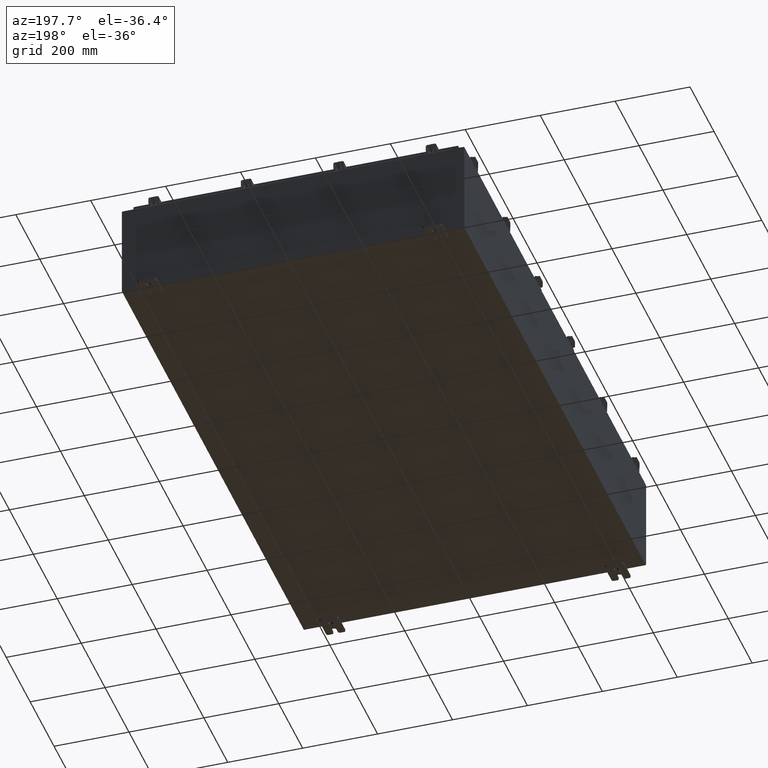
[diagram: clean part render]
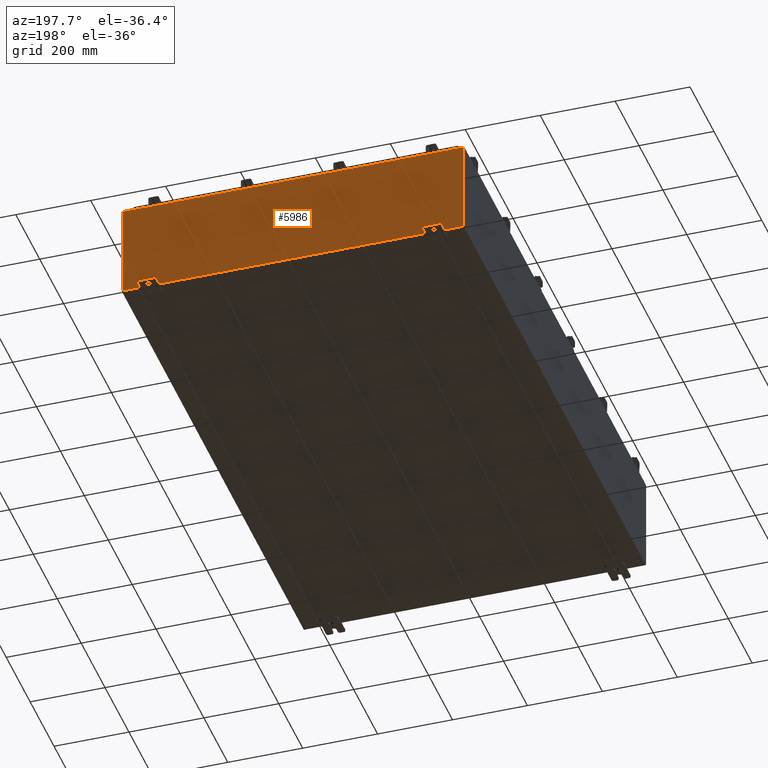
[diagram: same view with one face highlighted and labeled with its STEP entity id]
A machine part, auxiliary view. The second image highlights one B-rep face of the part: STEP entity #5986.
In plain terms, the highlighted planar face has unit normal (0, -1, 0).
Its self-contained STEP definition (entity closure, byte-faithful):
#333 = CARTESIAN_POINT ( 'NONE',  ( -16.65587500000000200, 0.0000000000000000000, 4.874950000000000100 ) ) ;
#444 = DIRECTION ( 'NONE',  ( 1.000000000000000000, 0.0000000000000000000, 0.0000000000000000000 ) ) ;
#570 = DIRECTION ( 'NONE',  ( 1.000000000000000000, 0.0000000000000000000, 0.0000000000000000000 ) ) ;
#1086 = VECTOR ( 'NONE', #444, 39.37007874015748100 ) ;
#1628 = CARTESIAN_POINT ( 'NONE',  ( -17.92530000000000000, 0.0000000000000000000, 4.925300000000000000 ) ) ;
#1728 = CARTESIAN_POINT ( 'NONE',  ( -16.67455000000000000, -0.0000000000000000000, 0.0000000000000000000 ) ) ;
#1846 = VERTEX_POINT ( 'NONE', #13871 ) ;
#1867 = CARTESIAN_POINT ( 'NONE',  ( -17.92530000000000000, 0.0000000000000000000, 4.925300000000000000 ) ) ;
#1910 = DIRECTION ( 'NONE',  ( -0.0000000000000000000, 1.000000000000000000, -0.0000000000000000000 ) ) ;
#1996 = AXIS2_PLACEMENT_3D ( 'NONE', #333, #15215, #2466 ) ;
#2466 = DIRECTION ( 'NONE',  ( 0.0000000000000000000, 0.0000000000000000000, -1.000000000000000000 ) ) ;
#2500 = VERTEX_POINT ( 'NONE', #19544 ) ;
#2818 = CARTESIAN_POINT ( 'NONE',  ( -16.67455000000000000, 0.0000000000000000000, 4.925300000000000000 ) ) ;
#3344 = DIRECTION ( 'NONE',  ( 0.0000000000000000000, -0.0000000000000000000, -1.000000000000000000 ) ) ;
#3727 = EDGE_CURVE ( 'NONE', #2500, #17770, #15186, .T. ) ;
#3795 = ORIENTED_EDGE ( 'NONE', *, *, #11682, .F. ) ;
#4100 = VECTOR ( 'NONE', #17816, 39.37007874015748100 ) ;
#4162 = CARTESIAN_POINT ( 'NONE',  ( 16.67455000000000700, 0.0000000000000000000, 4.925300000000000000 ) ) ;
#4494 = CARTESIAN_POINT ( 'NONE',  ( 17.92530000000000000, 0.0000000000000000000, 4.925300000000000000 ) ) ;
#5063 = CARTESIAN_POINT ( 'NONE',  ( 16.63720000000000400, 0.0000000000000000000, 0.0000000000000000000 ) ) ;
#5292 = ORIENTED_EDGE ( 'NONE', *, *, #3727, .T. ) ;
#5396 = PLANE ( 'NONE',  #25434 ) ;
#5709 = VECTOR ( 'NONE', #14473, 39.37007874015748100 ) ;
#5986 = ADVANCED_FACE ( 'NONE', ( #26642 ), #5396, .F. ) ;
#6017 = CARTESIAN_POINT ( 'NONE',  ( -16.67455000000000000, 0.0000000000000000000, 4.874950000000000100 ) ) ;
#6211 = LINE ( 'NONE', #10106, #27541 ) ;
#6290 = VERTEX_POINT ( 'NONE', #4162 ) ;
#6523 = EDGE_CURVE ( 'NONE', #6290, #2500, #15960, .T. ) ;
#6993 = VERTEX_POINT ( 'NONE', #11658 ) ;
#7397 = LINE ( 'NONE', #17135, #17403 ) ;
#7471 = VERTEX_POINT ( 'NONE', #17314 ) ;
#7547 = EDGE_CURVE ( 'NONE', #13628, #22207, #16565, .T. ) ;
#7773 = EDGE_CURVE ( 'NONE', #6290, #1846, #6211, .T. ) ;
#7804 = VERTEX_POINT ( 'NONE', #6017 ) ;
#8393 = CIRCLE ( 'NONE', #1996, 0.01867499999999949400 ) ;
#8779 = ORIENTED_EDGE ( 'NONE', *, *, #9024, .F. ) ;
#9024 = EDGE_CURVE ( 'NONE', #1846, #24946, #10475, .T. ) ;
#9522 = VECTOR ( 'NONE', #19370, 39.37007874015748100 ) ;
#10074 = ORIENTED_EDGE ( 'NONE', *, *, #13164, .F. ) ;
#10106 = CARTESIAN_POINT ( 'NONE',  ( 16.67454999999957700, -0.0000000000000000000, -1.447541957108341500E-012 ) ) ;
#10164 = DIRECTION ( 'NONE',  ( 1.000000000000000000, 0.0000000000000000000, 0.0000000000000000000 ) ) ;
#10462 = CARTESIAN_POINT ( 'NONE',  ( 16.63720000000000400, 0.0000000000000000000, 4.874950000000000100 ) ) ;
#10475 = CIRCLE ( 'NONE', #19586, 0.01867499999999949400 ) ;
#11138 = CARTESIAN_POINT ( 'NONE',  ( -16.63720000000000400, -7.171100983368691200E-016, 4.912300000000000100 ) ) ;
#11192 = ORIENTED_EDGE ( 'NONE', *, *, #27298, .T. ) ;
#11200 = VERTEX_POINT ( 'NONE', #19673 ) ;
#11651 = ORIENTED_EDGE ( 'NONE', *, *, #13365, .F. ) ;
#11658 = CARTESIAN_POINT ( 'NONE',  ( -16.63720000000000400, -0.0000000000000000000, 4.874950000000000100 ) ) ;
#11682 = EDGE_CURVE ( 'NONE', #24946, #7471, #27415, .T. ) ;
#11692 = VERTEX_POINT ( 'NONE', #26363 ) ;
#11717 = CARTESIAN_POINT ( 'NONE',  ( 0.0000000000000000000, 0.0000000000000000000, 0.0000000000000000000 ) ) ;
#12131 = EDGE_CURVE ( 'NONE', #11200, #6993, #7397, .T. ) ;
#12170 = DIRECTION ( 'NONE',  ( -8.681145560800009800E-014, 0.0000000000000000000, -1.000000000000000000 ) ) ;
#12453 = DIRECTION ( 'NONE',  ( -0.0000000000000000000, -0.0000000000000000000, 1.000000000000000000 ) ) ;
#12557 = ORIENTED_EDGE ( 'NONE', *, *, #6523, .T. ) ;
#12643 = LINE ( 'NONE', #25908, #17665 ) ;
#12678 = ORIENTED_EDGE ( 'NONE', *, *, #12131, .F. ) ;
#12785 = ORIENTED_EDGE ( 'NONE', *, *, #7773, .F. ) ;
#12897 = EDGE_CURVE ( 'NONE', #11200, #7471, #18058, .T. ) ;
#13164 = EDGE_CURVE ( 'NONE', #7804, #22207, #22686, .T. ) ;
#13365 = EDGE_CURVE ( 'NONE', #6993, #7804, #8393, .T. ) ;
#13628 = VERTEX_POINT ( 'NONE', #13891 ) ;
#13871 = CARTESIAN_POINT ( 'NONE',  ( 16.67455000000000000, 0.0000000000000000000, 4.874950000000000100 ) ) ;
#13891 = CARTESIAN_POINT ( 'NONE',  ( -17.92530000000000000, 0.0000000000000000000, 4.925300000000000000 ) ) ;
#14473 = DIRECTION ( 'NONE',  ( 0.0000000000000000000, 0.0000000000000000000, 1.000000000000000000 ) ) ;
#14656 = CARTESIAN_POINT ( 'NONE',  ( 16.65587500000000200, 0.0000000000000000000, 4.874950000000000100 ) ) ;
#14737 = EDGE_LOOP ( 'NONE', ( #10074, #11651, #12678, #18173, #3795, #8779, #12785, #12557, #5292, #11192, #26732, #22195 ) ) ;
#15186 = LINE ( 'NONE', #4494, #9522 ) ;
#15215 = DIRECTION ( 'NONE',  ( -0.0000000000000000000, 1.000000000000000000, -0.0000000000000000000 ) ) ;
#15312 = DIRECTION ( 'NONE',  ( -1.000000000000000000, -0.0000000000000000000, -0.0000000000000000000 ) ) ;
#15960 = LINE ( 'NONE', #1628, #20932 ) ;
#16090 = DIRECTION ( 'NONE',  ( 0.0000000000000000000, -1.000000000000000000, 0.0000000000000000000 ) ) ;
#16565 = LINE ( 'NONE', #23908, #26558 ) ;
#16791 = DIRECTION ( 'NONE',  ( 0.0000000000000000000, 0.0000000000000000000, -1.000000000000000000 ) ) ;
#17135 = CARTESIAN_POINT ( 'NONE',  ( -16.63720000000000400, -0.0000000000000000000, 0.0000000000000000000 ) ) ;
#17314 = CARTESIAN_POINT ( 'NONE',  ( 16.63720000000000400, 0.0000000000000000000, 4.912300000000000100 ) ) ;
#17403 = VECTOR ( 'NONE', #21301, 39.37007874015748100 ) ;
#17665 = VECTOR ( 'NONE', #15312, 39.37007874015748100 ) ;
#17770 = VERTEX_POINT ( 'NONE', #18899 ) ;
#17816 = DIRECTION ( 'NONE',  ( 0.0000000000000000000, 0.0000000000000000000, 1.000000000000000000 ) ) ;
#18058 = LINE ( 'NONE', #11138, #1086 ) ;
#18134 = VECTOR ( 'NONE', #12453, 39.37007874015748100 ) ;
#18173 = ORIENTED_EDGE ( 'NONE', *, *, #12897, .T. ) ;
#18899 = CARTESIAN_POINT ( 'NONE',  ( 17.92530000000000000, 0.0000000000000000000, -4.925300000000000000 ) ) ;
#19370 = DIRECTION ( 'NONE',  ( 0.0000000000000000000, 0.0000000000000000000, -1.000000000000000000 ) ) ;
#19544 = CARTESIAN_POINT ( 'NONE',  ( 17.92530000000000000, 0.0000000000000000000, 4.925300000000000000 ) ) ;
#19586 = AXIS2_PLACEMENT_3D ( 'NONE', #14656, #1910, #16791 ) ;
#19673 = CARTESIAN_POINT ( 'NONE',  ( -16.63720000000000400, -7.171100983368691200E-016, 4.912300000000000100 ) ) ;
#20932 = VECTOR ( 'NONE', #10164, 39.37007874015748100 ) ;
#21301 = DIRECTION ( 'NONE',  ( 0.0000000000000000000, 0.0000000000000000000, -1.000000000000000000 ) ) ;
#22195 = ORIENTED_EDGE ( 'NONE', *, *, #7547, .T. ) ;
#22207 = VERTEX_POINT ( 'NONE', #2818 ) ;
#22686 = LINE ( 'NONE', #1728, #5709 ) ;
#23785 = LINE ( 'NONE', #1867, #18134 ) ;
#23908 = CARTESIAN_POINT ( 'NONE',  ( -17.92530000000000000, 0.0000000000000000000, 4.925300000000000000 ) ) ;
#24212 = EDGE_CURVE ( 'NONE', #11692, #13628, #23785, .T. ) ;
#24946 = VERTEX_POINT ( 'NONE', #10462 ) ;
#25434 = AXIS2_PLACEMENT_3D ( 'NONE', #11717, #16090, #3344 ) ;
#25908 = CARTESIAN_POINT ( 'NONE',  ( -17.92530000000000000, 0.0000000000000000000, -4.925300000000000000 ) ) ;
#26363 = CARTESIAN_POINT ( 'NONE',  ( -17.92530000000000000, 0.0000000000000000000, -4.925300000000000000 ) ) ;
#26558 = VECTOR ( 'NONE', #570, 39.37007874015748100 ) ;
#26642 = FACE_OUTER_BOUND ( 'NONE', #14737, .T. ) ;
#26732 = ORIENTED_EDGE ( 'NONE', *, *, #24212, .T. ) ;
#27298 = EDGE_CURVE ( 'NONE', #17770, #11692, #12643, .T. ) ;
#27415 = LINE ( 'NONE', #5063, #4100 ) ;
#27541 = VECTOR ( 'NONE', #12170, 39.37007874015748100 ) ;